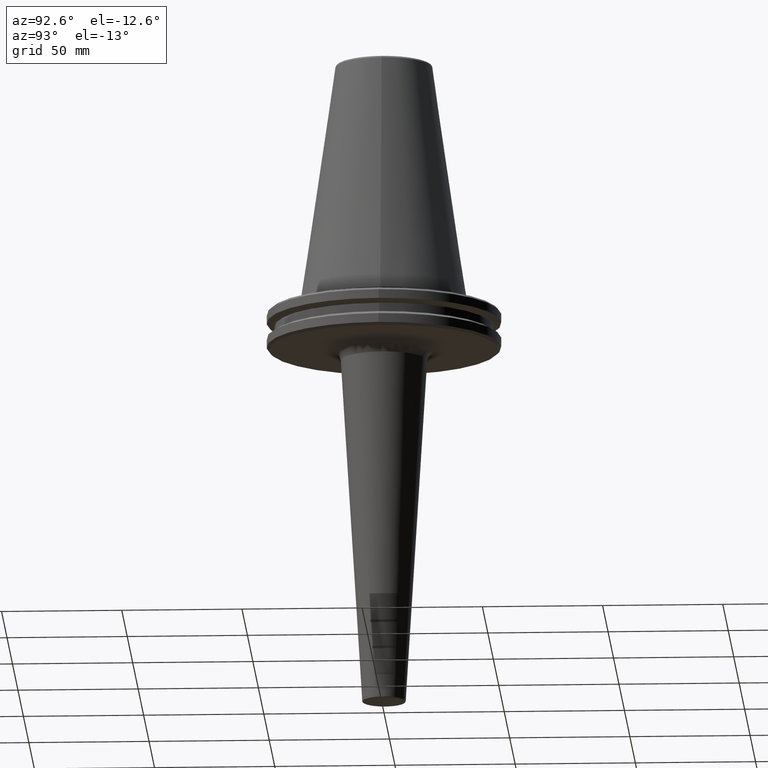
[diagram: clean part render]
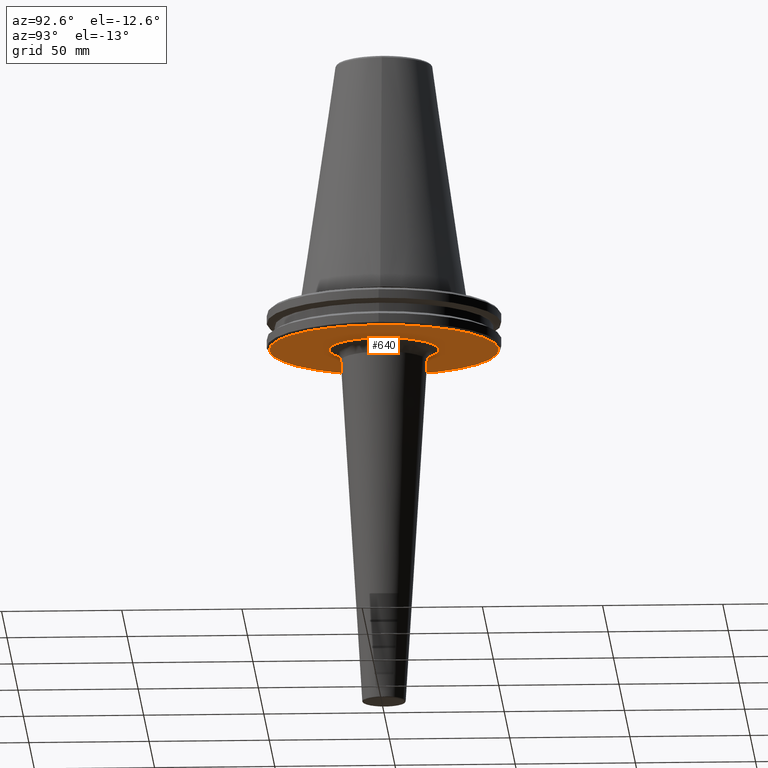
[diagram: same view with one face highlighted and labeled with its STEP entity id]
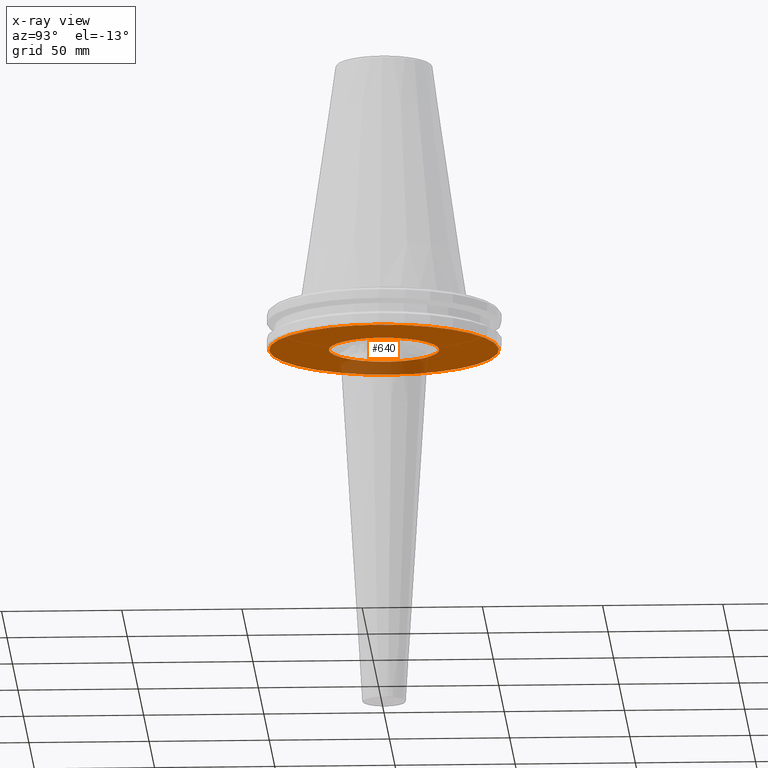
[diagram: x-ray of the same camera — body ghosted, the highlighted face saturated]
A machine part, auxiliary view. The second image highlights one B-rep face of the part: STEP entity #640.
The next image is the same camera in x-ray: the body ghosted, the highlighted face saturated — about 16% of this face is hidden behind the body in this view.
In plain terms, the highlighted planar face has unit normal (0, 0, -1).
Its self-contained STEP definition (entity closure, byte-faithful):
#1 = CARTESIAN_POINT ( 'NONE',  ( -22.55950144398842000, 4.222008853866961800, -19.10000000000000900 ) ) ;
#3 = CARTESIAN_POINT ( 'NONE',  ( -22.56401208992675200, 4.197829468767948500, -19.10000000000000500 ) ) ;
#5 = CARTESIAN_POINT ( 'NONE',  ( 18.34322292407961200, 13.88499760037782600, -19.10000000000000500 ) ) ;
#10 = VERTEX_POINT ( 'NONE', #586 ) ;
#11 = CARTESIAN_POINT ( 'NONE',  ( -22.53789176660566800, 4.336268098480996300, -19.10000000000000900 ) ) ;
#15 = CARTESIAN_POINT ( 'NONE',  ( -22.50683376621775300, 4.495997626400613200, -19.10000000000001200 ) ) ;
#16 = CARTESIAN_POINT ( 'NONE',  ( -4.908002801508226700, 22.43261073816235700, -19.10000000000000500 ) ) ;
#17 = CARTESIAN_POINT ( 'NONE',  ( -22.55089813364299200, 4.267724320512913400, -19.10000000000000500 ) ) ;
#18 = DIRECTION ( 'NONE',  ( -0.0000000000000000000, -0.0000000000000000000, 1.000000000000000000 ) ) ;
#20 = CARTESIAN_POINT ( 'NONE',  ( -22.44187852290518800, 4.814632866216221900, -19.10000000000000500 ) ) ;
#22 = CARTESIAN_POINT ( 'NONE',  ( 19.26419666505740500, 12.47623258490453000, -19.10000000000000500 ) ) ;
#23 = CARTESIAN_POINT ( 'NONE',  ( -22.30061106613319700, 5.448608081752962700, -19.10000000000000100 ) ) ;
#25 = CARTESIAN_POINT ( 'NONE',  ( -21.61366093888195600, 7.756297966682274700, -19.10000000000000500 ) ) ;
#27 = CARTESIAN_POINT ( 'NONE',  ( -21.97264827200173100, 6.703377456448435200, -19.10000000000000100 ) ) ;
#28 = CARTESIAN_POINT ( 'NONE',  ( 19.31560118635405800, 12.39649085262990300, -19.10000000000000500 ) ) ;
#30 = CARTESIAN_POINT ( 'NONE',  ( -21.30389243461552300, 8.538292996058746800, -19.10000000000000900 ) ) ;
#33 = CARTESIAN_POINT ( 'NONE',  ( -21.32260329363700900, 8.491446282458580800, -19.10000000000000100 ) ) ;
#36 = CARTESIAN_POINT ( 'NONE',  ( -21.21288987433400300, 8.762778658812587600, -19.10000000000000900 ) ) ;
#37 = CARTESIAN_POINT ( 'NONE',  ( 19.41955077818251100, 12.23304086201306300, -19.10000000000000500 ) ) ;
#39 = CARTESIAN_POINT ( 'NONE',  ( -21.26765401825591400, 8.628171966038488300, -19.10000000000000500 ) ) ;
#42 = CARTESIAN_POINT ( 'NONE',  ( 19.57384531051711800, 11.98702614806753400, -19.09999999999999800 ) ) ;
#44 = CARTESIAN_POINT ( 'NONE',  ( 4.495997626405255700, 22.50683376621488900, -19.10000000000000500 ) ) ;
#50 = CARTESIAN_POINT ( 'NONE',  ( 19.92245689810803800, 11.40711371938614100, -19.10000000000000500 ) ) ;
#53 = CARTESIAN_POINT ( 'NONE',  ( 20.57404412186392400, 10.22377647745599400, -19.10000000000000900 ) ) ;
#59 = CARTESIAN_POINT ( 'NONE',  ( 21.05431439692443300, 9.169180467971848700, -19.10000000000000100 ) ) ;
#64 = CARTESIAN_POINT ( 'NONE',  ( 21.35756245250935900, 8.403141126127970000, -19.10000000000000100 ) ) ;
#87 = CARTESIAN_POINT ( 'NONE',  ( 21.37384315560257200, 8.361633616805338700, -19.10000000000000500 ) ) ;
#92 = CARTESIAN_POINT ( 'NONE',  ( 21.40755580448232100, 8.274949252228260800, -19.10000000000000100 ) ) ;
#99 = CARTESIAN_POINT ( 'NONE',  ( 21.45771860267173600, 8.144806987863727700, -19.10000000000000900 ) ) ;
#108 = CARTESIAN_POINT ( 'NONE',  ( 21.57192190586885200, 7.840331681854032700, -19.10000000000000500 ) ) ;
#115 = CARTESIAN_POINT ( 'NONE',  ( 21.78895560861709800, 7.228140979864877000, -19.10000000000000900 ) ) ;
#118 = CARTESIAN_POINT ( 'NONE',  ( 22.17753139952955300, 5.990799216007466100, -19.10000000000000900 ) ) ;
#127 = CARTESIAN_POINT ( 'NONE',  ( 22.43261073816760700, 4.908002801479815600, -19.10000000000000100 ) ) ;
#133 = CARTESIAN_POINT ( 'NONE',  ( 22.57223437202241100, 4.153397126587055500, -19.09999999999999800 ) ) ;
#137 = CARTESIAN_POINT ( 'NONE',  ( -0.7017264702071781500, 22.95118080493218600, -19.10000000000001200 ) ) ;
#142 = CARTESIAN_POINT ( 'NONE',  ( 22.57595469684924100, 4.133119030047765800, -19.10000000000000500 ) ) ;
#146 = CIRCLE ( 'NONE', #1498, 47.74999999999985100 ) ;
#150 = CARTESIAN_POINT ( 'NONE',  ( -22.95116459005624100, 0.0000000000000000000, -19.10000000000000500 ) ) ;
#152 = CARTESIAN_POINT ( 'NONE',  ( 22.58381249565986700, 4.089965642565156900, -19.10000000000000500 ) ) ;
#155 = CARTESIAN_POINT ( 'NONE',  ( 0.0000000000000000000, 0.0000000000000000000, -19.09999999999995200 ) ) ;
#157 = CARTESIAN_POINT ( 'NONE',  ( -20.80962141713737900, 9.694649160651598800, -19.10000000000000500 ) ) ;
#158 = CARTESIAN_POINT ( 'NONE',  ( 22.59550564865184100, 4.025227109031038500, -19.10000000000000900 ) ) ;
#160 = CARTESIAN_POINT ( 'NONE',  ( -21.08226123617191700, 9.075378606583646100, -19.10000000000000100 ) ) ;
#162 = CARTESIAN_POINT ( 'NONE',  ( 22.62213485573227700, 3.874111364613334700, -19.10000000000000100 ) ) ;
#163 = CARTESIAN_POINT ( 'NONE',  ( -19.63435147914591600, 11.91009205470213500, -19.10000000000000500 ) ) ;
#168 = CARTESIAN_POINT ( 'NONE',  ( 22.67277400362293000, 3.571643211092213800, -19.10000000000000900 ) ) ;
#174 = CARTESIAN_POINT ( 'NONE',  ( -20.21881160822660200, 10.90947290289099000, -19.10000000000000500 ) ) ;
#176 = CARTESIAN_POINT ( 'NONE',  ( 22.76357523432338700, 2.965760245307117700, -19.10000000000000500 ) ) ;
#181 = CARTESIAN_POINT ( 'NONE',  ( -19.15698052161398500, 12.64022724779203500, -19.10000000000000500 ) ) ;
#182 = CARTESIAN_POINT ( 'NONE',  ( 5.448608081767785500, 22.30061106612404100, -19.10000000000000500 ) ) ;
#183 = CARTESIAN_POINT ( 'NONE',  ( -12.39649085263499400, 19.31560118635052300, -19.10000000000000100 ) ) ;
#184 = CARTESIAN_POINT ( 'NONE',  ( -3.874075420804635100, 22.62214150636499400, -19.10000000000000500 ) ) ;
#188 = CARTESIAN_POINT ( 'NONE',  ( -15.10877690594494500, 17.34901876926910400, -19.10000000000000500 ) ) ;
#189 = CARTESIAN_POINT ( 'NONE',  ( 8.762778658809761400, 21.21288987433618400, -19.10000000000000100 ) ) ;
#193 = CARTESIAN_POINT ( 'NONE',  ( -9.169180467992861200, 21.05431439690987400, -19.10000000000001200 ) ) ;
#200 = CARTESIAN_POINT ( 'NONE',  ( 22.90326943540105400, 1.750207678765511200, -19.10000000000000900 ) ) ;
#211 = CARTESIAN_POINT ( 'NONE',  ( 8.491446282457872000, 21.32260329363744200, -19.10000000000000100 ) ) ;
#214 = CARTESIAN_POINT ( 'NONE',  ( -18.99073925091895600, 12.88869939125997500, -19.10000000000000500 ) ) ;
#242 = FACE_BOUND ( 'NONE', #1380, .T. ) ;
#244 = CARTESIAN_POINT ( 'NONE',  ( -22.82344417764239700, 2.796071738162226900, -19.10000000000000500 ) ) ;
#248 = CARTESIAN_POINT ( 'NONE',  ( -22.95116459005624800, 1.403983749755523600, -19.10000000000000500 ) ) ;
#249 = CARTESIAN_POINT ( 'NONE',  ( -4.153397126586163800, 22.57223437202257100, -19.10000000000000500 ) ) ;
#253 = CARTESIAN_POINT ( 'NONE',  ( -12.47623258490391000, 19.26419666505770000, -19.10000000000000500 ) ) ;
#255 = CARTESIAN_POINT ( 'NONE',  ( -13.88499760038770600, 18.34322292407485100, -19.10000000000000900 ) ) ;
#257 = CARTESIAN_POINT ( 'NONE',  ( 9.075378606578356200, 21.08226123617601300, -19.10000000000000100 ) ) ;
#263 = CARTESIAN_POINT ( 'NONE',  ( -5.990799216057192600, 22.17753139952035500, -19.10000000000001200 ) ) ;
#268 = CARTESIAN_POINT ( 'NONE',  ( -18.82368421279878500, 13.13378210869916900, -19.10000000000000500 ) ) ;
#271 = FACE_OUTER_BOUND ( 'NONE', #612, .T. ) ;
#275 = CARTESIAN_POINT ( 'NONE',  ( -16.78899772366353800, 15.66887679200145900, -19.10000000000000900 ) ) ;
#285 = CARTESIAN_POINT ( 'NONE',  ( 11.91009205469523400, 19.63435147915127000, -19.10000000000000500 ) ) ;
#294 = CARTESIAN_POINT ( 'NONE',  ( 22.95116459005625100, 0.7018141046359958100, -19.10000000000001200 ) ) ;
#324 = CARTESIAN_POINT ( 'NONE',  ( 12.72450482169872500, 19.10112140129398000, -19.10000000000000100 ) ) ;
#328 = CARTESIAN_POINT ( 'NONE',  ( -8.403141126126660900, 21.35756245251026900, -19.10000000000000500 ) ) ;
#334 = CARTESIAN_POINT ( 'NONE',  ( 4.267724320514301600, 22.55089813364214600, -19.10000000000000900 ) ) ;
#355 = CARTESIAN_POINT ( 'NONE',  ( 18.82368421279510400, -13.13378210870481200, -19.10000000000000900 ) ) ;
#360 = CARTESIAN_POINT ( 'NONE',  ( 22.95116459005624100, 2.810707025191644700E-015, -19.10000000000000500 ) ) ;
#378 = CARTESIAN_POINT ( 'NONE',  ( -7.840331681875786000, 21.57192190586481900, -19.10000000000000500 ) ) ;
#402 = CARTESIAN_POINT ( 'NONE',  ( 6.703377456468196300, 21.97264827198954200, -19.10000000000000900 ) ) ;
#409 = CARTESIAN_POINT ( 'NONE',  ( -18.42351643596682100, 13.69717782438034500, -19.10000000000000100 ) ) ;
#432 = CARTESIAN_POINT ( 'NONE',  ( 21.26765401825243600, -8.628171966043813900, -19.10000000000000500 ) ) ;
#436 = CARTESIAN_POINT ( 'NONE',  ( 21.21288987432805200, -8.762778658821693200, -19.10000000000000900 ) ) ;
#441 = CARTESIAN_POINT ( 'NONE',  ( 21.08226123616082100, -9.075378606600635200, -19.10000000000000500 ) ) ;
#443 = CARTESIAN_POINT ( 'NONE',  ( -2.965645225119301300, 22.76359651634807000, -19.10000000000000500 ) ) ;
#450 = ORIENTED_EDGE ( 'NONE', *, *, #1155, .F. ) ;
#451 = CARTESIAN_POINT ( 'NONE',  ( -1.750054318515085600, 22.90329781143394800, -19.10000000000000500 ) ) ;
#457 = CARTESIAN_POINT ( 'NONE',  ( 22.30061106612713900, -5.448608081786472800, -19.10000000000000500 ) ) ;
#460 = CARTESIAN_POINT ( 'NONE',  ( 21.97264827199365900, -6.703377456493108800, -19.10000000000000100 ) ) ;
#461 = CARTESIAN_POINT ( 'NONE',  ( 21.61366093887734900, -7.756297966707802700, -19.10000000000000500 ) ) ;
#467 = CARTESIAN_POINT ( 'NONE',  ( 20.80962141711831800, -9.694649160680747000, -19.10000000000000500 ) ) ;
#478 = CARTESIAN_POINT ( 'NONE',  ( 21.30389243461373300, -8.538292996061470000, -19.10000000000000500 ) ) ;
#481 = CARTESIAN_POINT ( 'NONE',  ( 21.32260329363730700, -8.491446282456975000, -19.10000000000000500 ) ) ;
#484 = CARTESIAN_POINT ( 'NONE',  ( 12.23304086201432200, -19.41955077818169800, -19.10000000000000500 ) ) ;
#493 = CARTESIAN_POINT ( 'NONE',  ( 12.39649085263057100, -19.31560118635363200, -19.10000000000001200 ) ) ;
#504 = CARTESIAN_POINT ( 'NONE',  ( 22.53789176660468700, -4.336268098486404400, -19.10000000000000100 ) ) ;
#511 = CARTESIAN_POINT ( 'NONE',  ( 22.50683376621586300, -4.495997626411086600, -19.10000000000000900 ) ) ;
#512 = CARTESIAN_POINT ( 'NONE',  ( 15.66887679201126500, 16.78899772365628700, -19.10000000000000100 ) ) ;
#520 = CARTESIAN_POINT ( 'NONE',  ( 22.44187852290166400, -4.814632866235773400, -19.10000000000000900 ) ) ;
#525 = CARTESIAN_POINT ( 'NONE',  ( 22.56401208992675600, -4.197829468767965400, -19.10000000000000900 ) ) ;
#526 = CARTESIAN_POINT ( 'NONE',  ( 22.55950144398814000, -4.222008853868542700, -19.10000000000000500 ) ) ;
#532 = CARTESIAN_POINT ( 'NONE',  ( -10.22377647749275200, 20.57404412183843700, -19.10000000000000500 ) ) ;
#542 = CARTESIAN_POINT ( 'NONE',  ( 22.55089813364243100, -4.267724320516039800, -19.10000000000000100 ) ) ;
#557 = CARTESIAN_POINT ( 'NONE',  ( 22.95116459005624100, 2.810707025191644700E-015, -19.10000000000000500 ) ) ;
#560 = CARTESIAN_POINT ( 'NONE',  ( 22.95116459005624400, -1.403983749754345300, -19.10000000000000100 ) ) ;
#565 = CARTESIAN_POINT ( 'NONE',  ( 17.58169013075478700, -14.79011342238108100, -19.10000000000000500 ) ) ;
#567 = CARTESIAN_POINT ( 'NONE',  ( 22.82344417764239000, -2.796071738161106000, -19.10000000000000900 ) ) ;
#569 = CARTESIAN_POINT ( 'NONE',  ( 18.42351643596050400, -13.69717782439002100, -19.10000000000000900 ) ) ;
#581 = CARTESIAN_POINT ( 'NONE',  ( 1.403452940414378100, 22.95113216030436800, -19.10000000000000100 ) ) ;
#583 = CARTESIAN_POINT ( 'NONE',  ( 19.10112140129457000, -12.72450482169813300, -19.10000000000000900 ) ) ;
#586 = CARTESIAN_POINT ( 'NONE',  ( 22.95116459005624100, 2.810707025191644700E-015, -19.10000000000000500 ) ) ;
#598 = CARTESIAN_POINT ( 'NONE',  ( -22.90326943540104300, -1.750207678794178700, -19.10000000000000900 ) ) ;
#603 = CARTESIAN_POINT ( 'NONE',  ( 4.336268098483391700, 22.53789176660420400, -19.10000000000000500 ) ) ;
#605 = CARTESIAN_POINT ( 'NONE',  ( -22.76357523432338300, -2.965760245328614700, -19.10000000000000500 ) ) ;
#606 = CARTESIAN_POINT ( 'NONE',  ( -6.703377456441685900, -21.97264827200558900, -19.10000000000000500 ) ) ;
#612 = EDGE_LOOP ( 'NONE', ( #450, #1465 ) ) ;
#623 = CARTESIAN_POINT ( 'NONE',  ( -22.95116459005624100, 0.0000000000000000000, -19.10000000000000500 ) ) ;
#625 = CARTESIAN_POINT ( 'NONE',  ( 8.361633616810623300, -21.37384315560055700, -19.10000000000000100 ) ) ;
#631 = CARTESIAN_POINT ( 'NONE',  ( -17.58169013076322400, 14.79011342236818100, -19.10000000000000500 ) ) ;
#640 = ADVANCED_FACE ( 'NONE', ( #242, #271 ), #1330, .T. ) ;
#669 = ORIENTED_EDGE ( 'NONE', *, *, #1558, .T. ) ;
#675 = CARTESIAN_POINT ( 'NONE',  ( 10.90947290287891600, 20.21881160823594200, -19.10000000000000500 ) ) ;
#684 = CARTESIAN_POINT ( 'NONE',  ( 15.10877690595455800, -17.34901876925437800, -19.10000000000000900 ) ) ;
#695 = CARTESIAN_POINT ( 'NONE',  ( 16.78899772365872100, -15.66887679200882700, -19.10000000000000900 ) ) ;
#699 = CARTESIAN_POINT ( 'NONE',  ( 12.47623258490453000, -19.26419666505740800, -19.10000000000000900 ) ) ;
#703 = CARTESIAN_POINT ( 'NONE',  ( -17.34901876925783200, -15.10877690595112100, -19.10000000000000900 ) ) ;
#704 = DIRECTION ( 'NONE',  ( 1.000000000000000000, 0.0000000000000000000, 0.0000000000000000000 ) ) ;
#706 = CARTESIAN_POINT ( 'NONE',  ( -14.79011342237806100, -17.58169013075780600, -19.10000000000000100 ) ) ;
#707 = DIRECTION ( 'NONE',  ( -0.0000000000000000000, -0.0000000000000000000, 1.000000000000000000 ) ) ;
#711 = CARTESIAN_POINT ( 'NONE',  ( 13.88499760037783100, -18.34322292407961900, -19.10000000000001200 ) ) ;
#714 = CARTESIAN_POINT ( 'NONE',  ( 0.0000000000000000000, 0.0000000000000000000, -19.09999999999995200 ) ) ;
#715 = CARTESIAN_POINT ( 'NONE',  ( -3.571576115982650500, 22.67278641813732100, -19.10000000000000500 ) ) ;
#721 = CARTESIAN_POINT ( 'NONE',  ( 11.40711371938972000, -19.92245689810569700, -19.10000000000000500 ) ) ;
#726 = CARTESIAN_POINT ( 'NONE',  ( -4.336268098480179100, -22.53789176660613300, -19.10000000000000900 ) ) ;
#730 = CARTESIAN_POINT ( 'NONE',  ( -22.43261073815926200, -4.908002801507544500, -19.10000000000000100 ) ) ;
#731 = CARTESIAN_POINT ( 'NONE',  ( 4.814632866224883400, 22.44187852289985600, -19.10000000000000500 ) ) ;
#735 = CARTESIAN_POINT ( 'NONE',  ( -22.17753139951493700, -5.990799216055996200, -19.10000000000000500 ) ) ;
#738 = CARTESIAN_POINT ( 'NONE',  ( -22.58381249565984900, -4.089965642567158000, -19.09999999999999800 ) ) ;
#746 = CARTESIAN_POINT ( 'NONE',  ( -21.78895560860612700, -7.228140979901266600, -19.10000000000000100 ) ) ;
#751 = CARTESIAN_POINT ( 'NONE',  ( 18.99073925091672500, -12.88869939126336000, -19.09999999999999800 ) ) ;
#752 = CARTESIAN_POINT ( 'NONE',  ( -21.57192190586245700, -7.840331681875263700, -19.10000000000000500 ) ) ;
#753 = CARTESIAN_POINT ( 'NONE',  ( -7.228140979902162800, 21.78895560861019500, -19.10000000000001200 ) ) ;
#764 = CARTESIAN_POINT ( 'NONE',  ( -22.59550564865184100, -4.025227109034505100, -19.10000000000000900 ) ) ;
#770 = CARTESIAN_POINT ( 'NONE',  ( -22.57223437202267400, -4.153397126586185100, -19.10000000000000900 ) ) ;
#773 = CARTESIAN_POINT ( 'NONE',  ( -4.089954902212793000, 22.58381448293226500, -19.10000000000000100 ) ) ;
#774 = CARTESIAN_POINT ( 'NONE',  ( -22.57595469684924400, -4.133119030048777500, -19.10000000000000900 ) ) ;
#780 = CARTESIAN_POINT ( 'NONE',  ( 19.15698052161579700, -12.64022724778925700, -19.10000000000000500 ) ) ;
#781 = CARTESIAN_POINT ( 'NONE',  ( 7.756297966693569600, 21.61366093887499000, -19.10000000000000900 ) ) ;
#789 = CARTESIAN_POINT ( 'NONE',  ( -8.274949252235090900, 21.40755580448104600, -19.09999999999999800 ) ) ;
#792 = CARTESIAN_POINT ( 'NONE',  ( 2.796247050092167000, 22.82341173157409000, -19.10000000000000900 ) ) ;
#796 = CARTESIAN_POINT ( 'NONE',  ( -22.95116459005624100, 0.0000000000000000000, -19.10000000000000500 ) ) ;
#809 = CARTESIAN_POINT ( 'NONE',  ( 1.750054318611656600, -22.90329781142991900, -19.10000000000000500 ) ) ;
#812 = CARTESIAN_POINT ( 'NONE',  ( 0.7017264702623596800, -22.95118080492989100, -19.10000000000000500 ) ) ;
#824 = ORIENTED_EDGE ( 'NONE', *, *, #1387, .T. ) ;
#833 = CARTESIAN_POINT ( 'NONE',  ( -1.403452940524733100, -22.95113216030894800, -19.10000000000000900 ) ) ;
#842 = CARTESIAN_POINT ( 'NONE',  ( -22.62213485573227700, -3.874111364620044900, -19.10000000000000500 ) ) ;
#844 = CARTESIAN_POINT ( 'NONE',  ( -2.796247050002423200, -22.82341173157867300, -19.10000000000000500 ) ) ;
#849 = CARTESIAN_POINT ( 'NONE',  ( -4.197826729520444100, -22.56401259689650400, -19.10000000000000900 ) ) ;
#851 = CARTESIAN_POINT ( 'NONE',  ( -21.45771860266830800, -8.144806987875096400, -19.10000000000000500 ) ) ;
#859 = CARTESIAN_POINT ( 'NONE',  ( 2.965645225191724200, -22.76359651634505700, -19.10000000000000500 ) ) ;
#866 = CARTESIAN_POINT ( 'NONE',  ( 3.571576116024900200, -22.67278641813555900, -19.10000000000000900 ) ) ;
#868 = CARTESIAN_POINT ( 'NONE',  ( 4.222008853867666100, 22.55950144398800100, -19.10000000000000100 ) ) ;
#872 = CARTESIAN_POINT ( 'NONE',  ( 19.63435147913140400, -11.91009205472434300, -19.10000000000000500 ) ) ;
#874 = CARTESIAN_POINT ( 'NONE',  ( -21.05431439692344500, -9.169180467967418500, -19.10000000000000500 ) ) ;
#882 = CARTESIAN_POINT ( 'NONE',  ( 3.874075420827265000, -22.62214150636404100, -19.09999999999999800 ) ) ;
#884 = CARTESIAN_POINT ( 'NONE',  ( -47.74999999999985100, 5.908920805885987500E-015, -19.09999999999995200 ) ) ;
#885 = CARTESIAN_POINT ( 'NONE',  ( -11.98702614808361300, 19.57384531050596600, -19.10000000000000100 ) ) ;
#889 = CARTESIAN_POINT ( 'NONE',  ( 4.025208538074901200, -22.59550908481159600, -19.10000000000000500 ) ) ;
#895 = CARTESIAN_POINT ( 'NONE',  ( 4.089954902219552000, -22.58381448293197400, -19.10000000000000500 ) ) ;
#904 = CARTESIAN_POINT ( 'NONE',  ( 4.133113595689628100, -22.57595570236143000, -19.10000000000000500 ) ) ;
#908 = CARTESIAN_POINT ( 'NONE',  ( -20.57404412186219400, -10.22377647744823300, -19.10000000000000500 ) ) ;
#910 = CARTESIAN_POINT ( 'NONE',  ( 4.153397126585704600, -22.57223437202291200, -19.10000000000000100 ) ) ;
#922 = CARTESIAN_POINT ( 'NONE',  ( -4.025208538063209200, 22.59550908481209000, -19.10000000000000500 ) ) ;
#925 = CARTESIAN_POINT ( 'NONE',  ( 20.21881160820118200, -10.90947290292986000, -19.10000000000000500 ) ) ;
#927 = CARTESIAN_POINT ( 'NONE',  ( 4.908002801522822100, -22.43261073815126100, -19.10000000000000500 ) ) ;
#934 = CARTESIAN_POINT ( 'NONE',  ( 5.990799216082736600, -22.17753139950092500, -19.10000000000000500 ) ) ;
#940 = CARTESIAN_POINT ( 'NONE',  ( 12.64022724779289700, 19.15698052161332000, -19.10000000000000500 ) ) ;
#945 = CARTESIAN_POINT ( 'NONE',  ( -19.26419666505597000, -12.47623258490597000, -19.10000000000000500 ) ) ;
#949 = CARTESIAN_POINT ( 'NONE',  ( -12.88869939126257900, -18.99073925091753900, -19.10000000000000500 ) ) ;
#951 = CARTESIAN_POINT ( 'NONE',  ( -12.72450482169772100, -19.10112140129499300, -19.10000000000000500 ) ) ;
#957 = CARTESIAN_POINT ( 'NONE',  ( -19.92245689810674800, -11.40711371938032300, -19.10000000000000500 ) ) ;
#959 = CARTESIAN_POINT ( 'NONE',  ( -12.64022724779198200, -19.15698052161410200, -19.10000000000000500 ) ) ;
#963 = CARTESIAN_POINT ( 'NONE',  ( 17.34901876924949700, 15.10877690595943100, -19.09999999999999800 ) ) ;
#970 = CARTESIAN_POINT ( 'NONE',  ( 8.538292996057901300, 21.30389243461617700, -19.10000000000000500 ) ) ;
#981 = DIRECTION ( 'NONE',  ( 1.000000000000000000, 0.0000000000000000000, 0.0000000000000000000 ) ) ;
#982 = CARTESIAN_POINT ( 'NONE',  ( -18.34322292410253800, -13.88499760035491100, -19.10000000000000500 ) ) ;
#983 = CARTESIAN_POINT ( 'NONE',  ( -11.91009205470261100, -19.63435147914503900, -19.10000000000000500 ) ) ;
#986 = CARTESIAN_POINT ( 'NONE',  ( -10.90947290289181700, -20.21881160822505300, -19.10000000000000900 ) ) ;
#992 = B_SPLINE_CURVE_WITH_KNOTS ( 'NONE', 3,
 ( #796, #1278, #598, #605, #1505, #842, #764, #738, #774, #770, #730, #735, #746, #752, #851, #1029, #1042, #1015, #874, #908, #957, #1067, #1083, #1397, #945, #982, #703, #1213, #706, #1210, #1217, #949, #951, #959, #983, #986, #1001, #1006, #1023, #1046, #1056, #1078, #1093, #606, #1104, #1137, #1154, #726, #1176, #1196, #849, #844, #833, #812, #809, #859, #866, #882, #889, #895, #904, #910, #927, #934, #1493, #1427, #1310, #1294, #625, #1512, #1521, #1533, #721, #1426, #484, #493, #699, #711, #684, #695, #565, #569, #355, #751, #583, #780, #872, #925, #467, #441, #436, #432, #478, #481, #461, #460, #457, #520, #511, #504, #542, #526, #525, #567, #560, #557 ),
 .UNSPECIFIED., .F., .F.,
 ( 4, 1, 1, 1, 1, 1, 2, 2, 1, 1, 1, 1, 2, 2, 1, 1, 1, 2, 2, 2, 1, 1, 1, 2, 2, 1, 1, 1, 1, 2, 2, 1, 1, 1, 1, 1, 2, 2, 2, 1, 1, 1, 1, 1, 2, 2, 1, 1, 1, 1, 2, 2, 1, 1, 1, 2, 2, 2, 1, 1, 1, 2, 2, 1, 1, 1, 1, 2, 2, 1, 1, 1, 1, 1, 2, 2, 4 ),
 ( 0.0000000000000000000, 0.03125000000000020800, 0.04687500000000031200, 0.05468750000000034000, 0.05859375000000034700, 0.06054687500000033300, 0.06152343750000036100, 0.06250000000000038900, 0.09375000000000167900, 0.1093750000000023300, 0.1171875000000026400, 0.1210937500000027300, 0.1230468750000027200, 0.1250000000000027200, 0.1562500000000020500, 0.1718750000000016900, 0.1796875000000015300, 0.1835937500000014700, 0.1875000000000014200, 0.2500000000000012800, 0.2812500000000013300, 0.2968750000000013300, 0.3046875000000013300, 0.3085937500000013300, 0.3125000000000013300, 0.3437500000000013300, 0.3593750000000013900, 0.3671875000000013900, 0.3710937500000014400, 0.3730468750000014400, 0.3750000000000014400, 0.4062500000000007800, 0.4218750000000004400, 0.4296875000000002800, 0.4335937500000001700, 0.4355468750000001700, 0.4365234375000001100, 0.4375000000000000600, 0.4999999999999975600, 0.5312499999999963400, 0.5468749999999956700, 0.5546874999999953400, 0.5585937499999952300, 0.5605468749999951200, 0.5615234374999951200, 0.5624999999999951200, 0.5937499999999957800, 0.6093749999999961100, 0.6171874999999962300, 0.6210937499999962300, 0.6230468749999962300, 0.6249999999999962300, 0.6562499999999968900, 0.6718749999999972200, 0.6796874999999974500, 0.6835937499999975600, 0.6874999999999976700, 0.7499999999999995600, 0.7812500000000005600, 0.7968750000000010000, 0.8046875000000011100, 0.8085937500000013300, 0.8125000000000014400, 0.8437500000000021100, 0.8593750000000024400, 0.8671875000000025500, 0.8710937500000025500, 0.8730468750000025500, 0.8750000000000025500, 0.9062500000000011100, 0.9218750000000003300, 0.9296875000000000000, 0.9335937499999997800, 0.9355468749999996700, 0.9365234374999996700, 0.9374999999999996700, 1.000000000000000000 ),
 .UNSPECIFIED. ) ;
#996 = EDGE_CURVE ( 'NONE', #1546, #1192, #1328, .T. ) ;
#1001 = CARTESIAN_POINT ( 'NONE',  ( -9.694649160652220500, -20.80962141713622100, -19.10000000000000900 ) ) ;
#1006 = CARTESIAN_POINT ( 'NONE',  ( -9.075378606583990800, -21.08226123617125900, -19.10000000000000100 ) ) ;
#1008 = CARTESIAN_POINT ( 'NONE',  ( -11.40711371941370400, 19.92245689808892500, -19.10000000000000100 ) ) ;
#1015 = CARTESIAN_POINT ( 'NONE',  ( -21.35756245250942700, -8.403141126128245400, -19.10000000000000900 ) ) ;
#1023 = CARTESIAN_POINT ( 'NONE',  ( -8.762778658812779400, -21.21288987433363700, -19.10000000000000100 ) ) ;
#1026 = CARTESIAN_POINT ( 'NONE',  ( 13.13378210870667900, 18.82368421279324300, -19.10000000000000500 ) ) ;
#1029 = CARTESIAN_POINT ( 'NONE',  ( -21.40755580448030700, -8.274949252234920400, -19.09999999999999800 ) ) ;
#1042 = CARTESIAN_POINT ( 'NONE',  ( -21.37384315560154800, -8.361633616808749300, -19.10000000000000100 ) ) ;
#1044 = VERTEX_POINT ( 'NONE', #623 ) ;
#1046 = CARTESIAN_POINT ( 'NONE',  ( -8.628171966038591400, -21.26765401825571200, -19.10000000000000500 ) ) ;
#1056 = CARTESIAN_POINT ( 'NONE',  ( -8.538292996058796500, -21.30389243461541300, -19.10000000000000500 ) ) ;
#1067 = CARTESIAN_POINT ( 'NONE',  ( -19.57384531051636100, -11.98702614806415100, -19.10000000000000500 ) ) ;
#1078 = CARTESIAN_POINT ( 'NONE',  ( -8.491446282458813500, -21.32260329363688500, -19.10000000000000500 ) ) ;
#1080 = CARTESIAN_POINT ( 'NONE',  ( 8.628171966036831000, 21.26765401825719700, -19.10000000000000500 ) ) ;
#1082 = DIRECTION ( 'NONE',  ( -1.000000000000000000, 0.0000000000000000000, -0.0000000000000000000 ) ) ;
#1083 = CARTESIAN_POINT ( 'NONE',  ( -19.41955077818205300, -12.23304086201102900, -19.10000000000000500 ) ) ;
#1089 = CARTESIAN_POINT ( 'NONE',  ( -8.361633616808834500, 21.37384315560190700, -19.09999999999999800 ) ) ;
#1091 = DIRECTION ( 'NONE',  ( 0.0000000000000000000, 0.0000000000000000000, -1.000000000000000000 ) ) ;
#1093 = CARTESIAN_POINT ( 'NONE',  ( -7.756297966678415500, -21.61366093888416300, -19.10000000000000100 ) ) ;
#1101 = CARTESIAN_POINT ( 'NONE',  ( 4.197826729519047900, 22.56401259689657500, -19.10000000000000500 ) ) ;
#1102 = CARTESIAN_POINT ( 'NONE',  ( 0.0000000000000000000, 1.392610934382537900E-015, -19.10000000000000500 ) ) ;
#1104 = CARTESIAN_POINT ( 'NONE',  ( -5.448608081747901000, -22.30061106613608500, -19.10000000000000500 ) ) ;
#1106 = CARTESIAN_POINT ( 'NONE',  ( -12.23304086202274400, 19.41955077817580400, -19.10000000000000500 ) ) ;
#1137 = CARTESIAN_POINT ( 'NONE',  ( -4.814632866213275800, -22.44187852290687200, -19.10000000000000500 ) ) ;
#1154 = CARTESIAN_POINT ( 'NONE',  ( -4.495997626399031300, -22.50683376621865500, -19.10000000000000500 ) ) ;
#1155 = EDGE_CURVE ( 'NONE', #1192, #1546, #146, .T. ) ;
#1174 = AXIS2_PLACEMENT_3D ( 'NONE', #1102, #1091, #1082 ) ;
#1176 = CARTESIAN_POINT ( 'NONE',  ( -4.267724320512439100, -22.55089813364326500, -19.10000000000000900 ) ) ;
#1179 = B_SPLINE_CURVE_WITH_KNOTS ( 'NONE', 3,
 ( #360, #294, #200, #176, #168, #162, #158, #152, #142, #133, #127, #118, #115, #108, #99, #92, #87, #64, #59, #53, #50, #42, #37, #28, #22, #5, #963, #512, #1530, #1190, #1026, #1242, #324, #940, #285, #675, #1402, #257, #189, #1080, #970, #211, #781, #402, #182, #731, #44, #603, #334, #868, #1101, #792, #581, #137, #451, #443, #715, #184, #922, #773, #1188, #249, #16, #263, #753, #378, #1496, #789, #1089, #328, #193, #532, #1008, #885, #1106, #183, #253, #255, #188, #275, #631, #409, #268, #214, #1309, #181, #163, #174, #157, #160, #36, #39, #30, #33, #25, #27, #23, #20, #15, #11, #17, #1, #3, #244, #248, #150 ),
 .UNSPECIFIED., .F., .F.,
 ( 4, 1, 1, 1, 1, 1, 2, 2, 1, 1, 1, 1, 2, 2, 1, 1, 1, 2, 2, 2, 1, 1, 1, 2, 2, 1, 1, 1, 1, 2, 2, 1, 1, 1, 1, 1, 2, 2, 2, 1, 1, 1, 1, 1, 2, 2, 1, 1, 1, 1, 2, 2, 1, 1, 1, 2, 2, 2, 1, 1, 1, 2, 2, 1, 1, 1, 1, 2, 2, 1, 1, 1, 1, 1, 2, 2, 4 ),
 ( 0.0000000000000000000, 0.03124999999999988200, 0.04687499999999983300, 0.05468749999999979900, 0.05859374999999977100, 0.06054687499999976400, 0.06152343749999977100, 0.06249999999999976400, 0.09374999999999997200, 0.1093750000000000800, 0.1171875000000001200, 0.1210937500000001200, 0.1230468750000001700, 0.1250000000000001900, 0.1562500000000000600, 0.1718749999999999700, 0.1796874999999999400, 0.1835937499999998600, 0.1874999999999997800, 0.2499999999999990000, 0.2812499999999986700, 0.2968749999999984500, 0.3046874999999982800, 0.3085937499999981700, 0.3124999999999980600, 0.3437499999999972800, 0.3593749999999968400, 0.3671874999999966100, 0.3710937499999965000, 0.3730468749999965000, 0.3749999999999965000, 0.4062499999999970600, 0.4218749999999973900, 0.4296874999999975600, 0.4335937499999976100, 0.4355468749999975600, 0.4365234374999975600, 0.4374999999999975600, 0.4999999999999962300, 0.5312499999999955600, 0.5468749999999952300, 0.5546874999999951200, 0.5585937499999951200, 0.5605468749999951200, 0.5615234374999951200, 0.5624999999999951200, 0.5937499999999958900, 0.6093749999999962300, 0.6171874999999964500, 0.6210937499999965600, 0.6230468749999966700, 0.6249999999999967800, 0.6562499999999970000, 0.6718749999999971100, 0.6796874999999972200, 0.6835937499999972200, 0.6874999999999972200, 0.7499999999999986700, 0.7812499999999994400, 0.7968749999999998900, 0.8046875000000001100, 0.8085937500000002200, 0.8125000000000002200, 0.8437500000000011100, 0.8593750000000016700, 0.8671875000000018900, 0.8710937500000017800, 0.8730468750000017800, 0.8750000000000017800, 0.9062500000000007800, 0.9218750000000003300, 0.9296875000000000000, 0.9335937499999998900, 0.9355468749999998900, 0.9365234374999998900, 0.9374999999999998900, 1.000000000000000000 ),
 .UNSPECIFIED. ) ;
#1188 = CARTESIAN_POINT ( 'NONE',  ( -4.133113595686207700, 22.57595570236157600, -19.10000000000000900 ) ) ;
#1190 = CARTESIAN_POINT ( 'NONE',  ( 13.69717782439321700, 18.42351643595731000, -19.10000000000000500 ) ) ;
#1192 = VERTEX_POINT ( 'NONE', #1265 ) ;
#1196 = CARTESIAN_POINT ( 'NONE',  ( -4.222008853866721100, -22.55950144398855900, -19.10000000000001200 ) ) ;
#1210 = CARTESIAN_POINT ( 'NONE',  ( -13.69717782438775600, -18.42351643596276400, -19.10000000000000500 ) ) ;
#1213 = CARTESIAN_POINT ( 'NONE',  ( -15.66887679200710100, -16.78899772366045100, -19.10000000000000500 ) ) ;
#1217 = CARTESIAN_POINT ( 'NONE',  ( -13.13378210870350100, -18.82368421279642200, -19.10000000000000900 ) ) ;
#1242 = CARTESIAN_POINT ( 'NONE',  ( 12.88869939126449400, 18.99073925091561300, -19.10000000000000500 ) ) ;
#1265 = CARTESIAN_POINT ( 'NONE',  ( 47.74999999999985100, 0.0000000000000000000, -19.09999999999995200 ) ) ;
#1278 = CARTESIAN_POINT ( 'NONE',  ( -22.95116459005624100, -0.7018141046523762600, -19.10000000000000500 ) ) ;
#1294 = CARTESIAN_POINT ( 'NONE',  ( 8.274949252238590300, -21.40755580447839200, -19.10000000000000500 ) ) ;
#1309 = CARTESIAN_POINT ( 'NONE',  ( -19.10112140129573500, 12.72450482169634800, -19.10000000000000500 ) ) ;
#1310 = CARTESIAN_POINT ( 'NONE',  ( 8.144806987881366900, -21.45771860266501500, -19.10000000000000900 ) ) ;
#1328 = CIRCLE ( 'NONE', #1385, 47.74999999999985100 ) ;
#1330 = PLANE ( 'NONE',  #1174 ) ;
#1380 = EDGE_LOOP ( 'NONE', ( #669, #824 ) ) ;
#1385 = AXIS2_PLACEMENT_3D ( 'NONE', #714, #707, #704 ) ;
#1387 = EDGE_CURVE ( 'NONE', #10, #1044, #1179, .T. ) ;
#1397 = CARTESIAN_POINT ( 'NONE',  ( -19.31560118635382400, -12.39649085262884200, -19.10000000000000500 ) ) ;
#1402 = CARTESIAN_POINT ( 'NONE',  ( 9.694649160642539300, 20.80962141714439200, -19.10000000000000500 ) ) ;
#1426 = CARTESIAN_POINT ( 'NONE',  ( 11.98702614806962600, -19.57384531051574700, -19.10000000000000100 ) ) ;
#1427 = CARTESIAN_POINT ( 'NONE',  ( 7.840331681886961100, -21.57192190585633500, -19.10000000000000500 ) ) ;
#1465 = ORIENTED_EDGE ( 'NONE', *, *, #996, .F. ) ;
#1493 = CARTESIAN_POINT ( 'NONE',  ( 7.228140979921330500, -21.78895560859562200, -19.10000000000000500 ) ) ;
#1496 = CARTESIAN_POINT ( 'NONE',  ( -8.144806987875382400, 21.45771860266955900, -19.10000000000000100 ) ) ;
#1498 = AXIS2_PLACEMENT_3D ( 'NONE', #155, #18, #981 ) ;
#1505 = CARTESIAN_POINT ( 'NONE',  ( -22.67277400362293300, -3.571643211104750500, -19.10000000000000500 ) ) ;
#1512 = CARTESIAN_POINT ( 'NONE',  ( 8.403141126127797700, -21.35756245250948000, -19.10000000000000500 ) ) ;
#1521 = CARTESIAN_POINT ( 'NONE',  ( 9.169180467974579000, -21.05431439692264900, -19.10000000000000900 ) ) ;
#1530 = CARTESIAN_POINT ( 'NONE',  ( 14.79011342238534400, 17.58169013075052700, -19.10000000000000100 ) ) ;
#1533 = CARTESIAN_POINT ( 'NONE',  ( 10.22377647746076700, -20.57404412186079400, -19.10000000000000500 ) ) ;
#1546 = VERTEX_POINT ( 'NONE', #884 ) ;
#1558 = EDGE_CURVE ( 'NONE', #1044, #10, #992, .T. ) ;